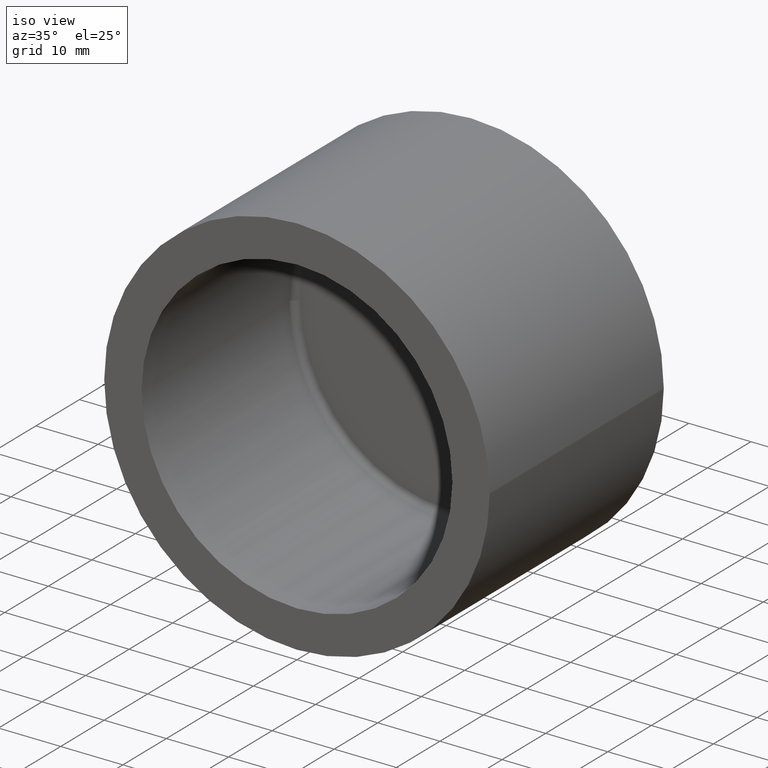
[diagram: clean part render]
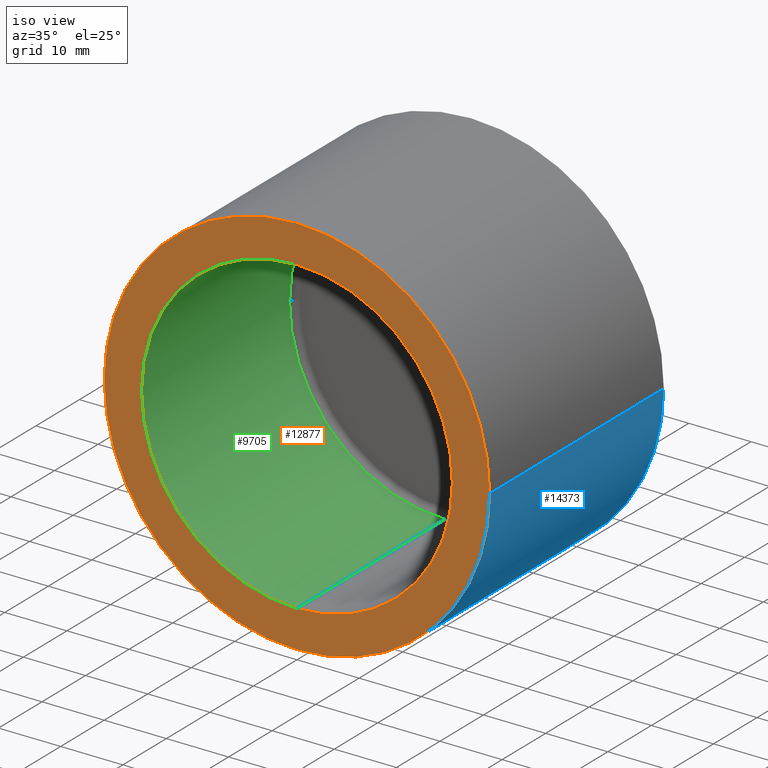
[diagram: same view with three faces highlighted in distinct colors, each labeled with its STEP entity id]
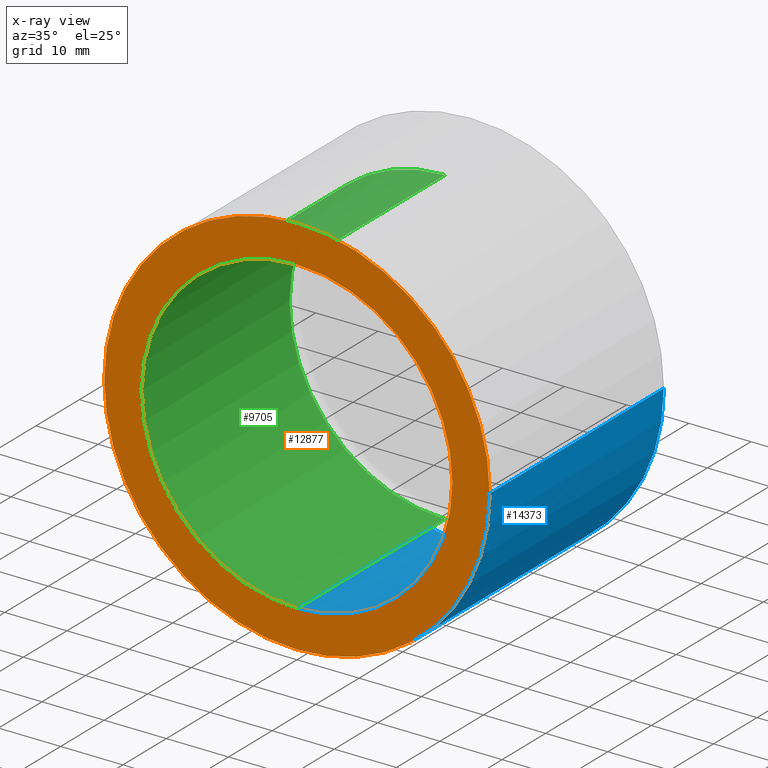
[diagram: x-ray of the same camera — body ghosted, the three highlighted faces saturated]
A machine part, iso view with three faces highlighted in distinct colors.
The next image is the same camera in x-ray (body ghosted, the three faces saturated) — at least one of them is partly hidden behind the body in this view.
Their STEP definitions:

[orange] entity #12877 — the highlighted planar face has unit normal (0, -1, 0).
#858 = VERTEX_POINT ( 'NONE', #4689 ) ;
#1329 = CARTESIAN_POINT ( 'NONE',  ( 0.000000000000000000, 0.000000000000000000, 0.000000000000000000 ) ) ;
#1640 = VERTEX_POINT ( 'NONE', #8630 ) ;
#1644 = CIRCLE ( 'NONE', #11172, 25.00000000000000000 ) ;
#1875 = DIRECTION ( 'NONE',  ( 1.000000000000000000, 8.673617379884035472E-17, 0.000000000000000000 ) ) ;
#1929 = DIRECTION ( 'NONE',  ( 8.673617379884035472E-17, -1.000000000000000000, 0.000000000000000000 ) ) ;
#2068 = VERTEX_POINT ( 'NONE', #6268 ) ;
#2712 = CIRCLE ( 'NONE', #9668, 31.00000000000000000 ) ;
#3038 = CIRCLE ( 'NONE', #14211, 25.00000000000000000 ) ;
#3312 = DIRECTION ( 'NONE',  ( -8.673617379884035472E-17, 1.000000000000000000, -0.000000000000000000 ) ) ;
#3354 = ORIENTED_EDGE ( 'NONE', *, *, #5034, .F. ) ;
#3358 = DIRECTION ( 'NONE',  ( -1.000000000000000000, -8.673617379884035472E-17, 0.000000000000000000 ) ) ;
#3397 = DIRECTION ( 'NONE',  ( 0.000000000000000000, -1.000000000000000000, 0.000000000000000000 ) ) ;
#3596 = ORIENTED_EDGE ( 'NONE', *, *, #5928, .F. ) ;
#3664 = CARTESIAN_POINT ( 'NONE',  ( 0.000000000000000000, 0.000000000000000000, 0.000000000000000000 ) ) ;
#4215 = CARTESIAN_POINT ( 'NONE',  ( -8.499999999999998224, -9.054108630585023749E-16, 0.000000000000000000 ) ) ;
#4689 = CARTESIAN_POINT ( 'NONE',  ( 31.00000000000000000, 2.688821387764050602E-15, 3.796405077356795904E-15 ) ) ;
#4889 = DIRECTION ( 'NONE',  ( -8.673617379884035472E-17, 1.000000000000000000, -0.000000000000000000 ) ) ;
#5014 = EDGE_CURVE ( 'NONE', #858, #1640, #2712, .T. ) ;
#5034 = EDGE_CURVE ( 'NONE', #2068, #13819, #1644, .T. ) ;
#5566 = EDGE_LOOP ( 'NONE', ( #3354, #3596 ) ) ;
#5928 = EDGE_CURVE ( 'NONE', #13819, #2068, #3038, .T. ) ;
#6268 = CARTESIAN_POINT ( 'NONE',  ( 0.000000000000000000, 0.000000000000000000, -25.00000000000000000 ) ) ;
#6385 = EDGE_CURVE ( 'NONE', #1640, #858, #11998, .T. ) ;
#7041 = CARTESIAN_POINT ( 'NONE',  ( 0.000000000000000000, 0.000000000000000000, 0.000000000000000000 ) ) ;
#8630 = CARTESIAN_POINT ( 'NONE',  ( -31.00000000000000000, -2.688821387764050996E-15, 0.000000000000000000 ) ) ;
#8908 = CARTESIAN_POINT ( 'NONE',  ( 0.000000000000000000, 0.000000000000000000, 0.000000000000000000 ) ) ;
#9239 = AXIS2_PLACEMENT_3D ( 'NONE', #4215, #1929, #1875 ) ;
#9415 = DIRECTION ( 'NONE',  ( -1.000000000000000000, -8.673617379884035472E-17, 0.000000000000000000 ) ) ;
#9668 = AXIS2_PLACEMENT_3D ( 'NONE', #7041, #4889, #9415 ) ;
#10487 = DIRECTION ( 'NONE',  ( 0.000000000000000000, 0.000000000000000000, -1.000000000000000000 ) ) ;
#10833 = CARTESIAN_POINT ( 'NONE',  ( 3.061616997868382254E-15, 0.000000000000000000, 25.00000000000000000 ) ) ;
#11172 = AXIS2_PLACEMENT_3D ( 'NONE', #3664, #11521, #10487 ) ;
#11254 = DIRECTION ( 'NONE',  ( 0.000000000000000000, 0.000000000000000000, -1.000000000000000000 ) ) ;
#11521 = DIRECTION ( 'NONE',  ( 0.000000000000000000, -1.000000000000000000, 0.000000000000000000 ) ) ;
#11562 = AXIS2_PLACEMENT_3D ( 'NONE', #1329, #3312, #3358 ) ;
#11564 = ORIENTED_EDGE ( 'NONE', *, *, #6385, .F. ) ;
#11998 = CIRCLE ( 'NONE', #11562, 31.00000000000000000 ) ;
#12877 = ADVANCED_FACE ( 'NONE', ( #14382, #13841 ), #14331, .T. ) ;
#13769 = EDGE_LOOP ( 'NONE', ( #11564, #14476 ) ) ;
#13819 = VERTEX_POINT ( 'NONE', #10833 ) ;
#13841 = FACE_OUTER_BOUND ( 'NONE', #13769, .T. ) ;
#14211 = AXIS2_PLACEMENT_3D ( 'NONE', #8908, #3397, #11254 ) ;
#14331 = PLANE ( 'NONE',  #9239 ) ;
#14382 = FACE_BOUND ( 'NONE', #5566, .T. ) ;
#14476 = ORIENTED_EDGE ( 'NONE', *, *, #5014, .F. ) ;

[blue] entity #14373 — the highlighted cylindrical surface (partial cylindrical patch) has radius 31 mm, axis along (-0, 1, -0).
#858 = VERTEX_POINT ( 'NONE', #4689 ) ;
#1186 = CARTESIAN_POINT ( 'NONE',  ( 31.00000000000000355, 40.00000000000000000, 3.796405077356795904E-15 ) ) ;
#1486 = CARTESIAN_POINT ( 'NONE',  ( -31.00000000000001066, 40.00000000000000000, 0.000000000000000000 ) ) ;
#1569 = ORIENTED_EDGE ( 'NONE', *, *, #8047, .F. ) ;
#1640 = VERTEX_POINT ( 'NONE', #8630 ) ;
#2040 = CARTESIAN_POINT ( 'NONE',  ( -3.469446951953614189E-15, 40.00000000000000000, 0.000000000000000000 ) ) ;
#2191 = ORIENTED_EDGE ( 'NONE', *, *, #5014, .T. ) ;
#2712 = CIRCLE ( 'NONE', #9668, 31.00000000000000000 ) ;
#3106 = DIRECTION ( 'NONE',  ( -8.673617379884035472E-17, 1.000000000000000000, -0.000000000000000000 ) ) ;
#3422 = VERTEX_POINT ( 'NONE', #5171 ) ;
#3456 = DIRECTION ( 'NONE',  ( -8.673617379884035472E-17, 1.000000000000000000, -0.000000000000000000 ) ) ;
#4066 = CIRCLE ( 'NONE', #10809, 31.00000000000001066 ) ;
#4146 = DIRECTION ( 'NONE',  ( -8.673617379884035472E-17, 1.000000000000000000, -0.000000000000000000 ) ) ;
#4483 = CYLINDRICAL_SURFACE ( 'NONE', #9047, 31.00000000000000711 ) ;
#4689 = CARTESIAN_POINT ( 'NONE',  ( 31.00000000000000000, 2.688821387764050602E-15, 3.796405077356795904E-15 ) ) ;
#4889 = DIRECTION ( 'NONE',  ( -8.673617379884035472E-17, 1.000000000000000000, -0.000000000000000000 ) ) ;
#5014 = EDGE_CURVE ( 'NONE', #858, #1640, #2712, .T. ) ;
#5171 = CARTESIAN_POINT ( 'NONE',  ( 31.00000000000000711, 40.00000000000000000, 3.796405077356795904E-15 ) ) ;
#5621 = VECTOR ( 'NONE', #9362, 1000.000000000000000 ) ;
#5830 = VERTEX_POINT ( 'NONE', #8815 ) ;
#7041 = CARTESIAN_POINT ( 'NONE',  ( 0.000000000000000000, 0.000000000000000000, 0.000000000000000000 ) ) ;
#7056 = EDGE_CURVE ( 'NONE', #3422, #5830, #4066, .T. ) ;
#7456 = FACE_OUTER_BOUND ( 'NONE', #8766, .T. ) ;
#7466 = CARTESIAN_POINT ( 'NONE',  ( -3.469446951953614189E-15, 40.00000000000000000, 0.000000000000000000 ) ) ;
#8047 = EDGE_CURVE ( 'NONE', #858, #3422, #12145, .T. ) ;
#8087 = LINE ( 'NONE', #1486, #5621 ) ;
#8630 = CARTESIAN_POINT ( 'NONE',  ( -31.00000000000000000, -2.688821387764050996E-15, 0.000000000000000000 ) ) ;
#8634 = DIRECTION ( 'NONE',  ( -1.000000000000000000, 0.000000000000000000, 0.000000000000000000 ) ) ;
#8766 = EDGE_LOOP ( 'NONE', ( #1569, #2191, #12526, #8961 ) ) ;
#8812 = EDGE_CURVE ( 'NONE', #1640, #5830, #8087, .T. ) ;
#8815 = CARTESIAN_POINT ( 'NONE',  ( -31.00000000000001421, 40.00000000000000000, 0.000000000000000000 ) ) ;
#8961 = ORIENTED_EDGE ( 'NONE', *, *, #7056, .F. ) ;
#9047 = AXIS2_PLACEMENT_3D ( 'NONE', #7466, #3106, #8634 ) ;
#9362 = DIRECTION ( 'NONE',  ( -8.673617379884035472E-17, 1.000000000000000000, -0.000000000000000000 ) ) ;
#9415 = DIRECTION ( 'NONE',  ( -1.000000000000000000, -8.673617379884035472E-17, 0.000000000000000000 ) ) ;
#9668 = AXIS2_PLACEMENT_3D ( 'NONE', #7041, #4889, #9415 ) ;
#10809 = AXIS2_PLACEMENT_3D ( 'NONE', #2040, #4146, #14349 ) ;
#12145 = LINE ( 'NONE', #1186, #13929 ) ;
#12526 = ORIENTED_EDGE ( 'NONE', *, *, #8812, .T. ) ;
#13929 = VECTOR ( 'NONE', #3456, 1000.000000000000000 ) ;
#14349 = DIRECTION ( 'NONE',  ( -1.000000000000000000, 0.000000000000000000, 0.000000000000000000 ) ) ;
#14373 = ADVANCED_FACE ( 'NONE', ( #7456 ), #4483, .T. ) ;

[green] entity #9705 — the highlighted cylindrical surface (partial cylindrical patch) has radius 25 mm, axis along (-0, -1, -0).
#203 = ORIENTED_EDGE ( 'NONE', *, *, #3072, .T. ) ;
#609 = VECTOR ( 'NONE', #2312, 1000.000000000000000 ) ;
#836 = CARTESIAN_POINT ( 'NONE',  ( 0.000000000000000000, 34.00000000000000000, 0.000000000000000000 ) ) ;
#1638 = ORIENTED_EDGE ( 'NONE', *, *, #5928, .T. ) ;
#1704 = VERTEX_POINT ( 'NONE', #7317 ) ;
#1886 = ORIENTED_EDGE ( 'NONE', *, *, #14273, .T. ) ;
#1997 = DIRECTION ( 'NONE',  ( -0.000000000000000000, -1.000000000000000000, -0.000000000000000000 ) ) ;
#2052 = CARTESIAN_POINT ( 'NONE',  ( 3.061616997868382254E-15, 34.00000000000000000, 25.00000000000000000 ) ) ;
#2068 = VERTEX_POINT ( 'NONE', #6268 ) ;
#2216 = CARTESIAN_POINT ( 'NONE',  ( 3.061616997868382254E-15, 110.7106781186547835, 25.00000000000000000 ) ) ;
#2312 = DIRECTION ( 'NONE',  ( -0.000000000000000000, -1.000000000000000000, -0.000000000000000000 ) ) ;
#2389 = EDGE_CURVE ( 'NONE', #7144, #1704, #5368, .T. ) ;
#2906 = AXIS2_PLACEMENT_3D ( 'NONE', #13902, #10593, #12803 ) ;
#3038 = CIRCLE ( 'NONE', #14211, 25.00000000000000000 ) ;
#3066 = DIRECTION ( 'NONE',  ( -1.000000000000000000, 0.000000000000000000, 0.000000000000000000 ) ) ;
#3072 = EDGE_CURVE ( 'NONE', #1704, #6798, #8367, .T. ) ;
#3397 = DIRECTION ( 'NONE',  ( 0.000000000000000000, -1.000000000000000000, 0.000000000000000000 ) ) ;
#4956 = AXIS2_PLACEMENT_3D ( 'NONE', #836, #8729, #8582 ) ;
#5368 = CIRCLE ( 'NONE', #4956, 25.00000000000000000 ) ;
#5928 = EDGE_CURVE ( 'NONE', #13819, #2068, #3038, .T. ) ;
#6268 = CARTESIAN_POINT ( 'NONE',  ( 0.000000000000000000, 0.000000000000000000, -25.00000000000000000 ) ) ;
#6306 = DIRECTION ( 'NONE',  ( -8.673617379884035472E-17, 1.000000000000000000, -0.000000000000000000 ) ) ;
#6379 = ORIENTED_EDGE ( 'NONE', *, *, #11111, .F. ) ;
#6445 = ORIENTED_EDGE ( 'NONE', *, *, #2389, .T. ) ;
#6798 = VERTEX_POINT ( 'NONE', #2052 ) ;
#7144 = VERTEX_POINT ( 'NONE', #11600 ) ;
#7317 = CARTESIAN_POINT ( 'NONE',  ( -25.00000000000000000, 34.00000000000000000, 0.000000000000000000 ) ) ;
#7848 = EDGE_LOOP ( 'NONE', ( #6445, #203, #1886, #1638, #6379 ) ) ;
#7882 = CYLINDRICAL_SURFACE ( 'NONE', #2906, 25.00000000000000000 ) ;
#8367 = CIRCLE ( 'NONE', #13052, 25.00000000000000000 ) ;
#8582 = DIRECTION ( 'NONE',  ( -1.000000000000000000, 0.000000000000000000, 0.000000000000000000 ) ) ;
#8597 = CARTESIAN_POINT ( 'NONE',  ( 0.000000000000000000, 34.00000000000000000, 0.000000000000000000 ) ) ;
#8729 = DIRECTION ( 'NONE',  ( -8.673617379884035472E-17, 1.000000000000000000, -0.000000000000000000 ) ) ;
#8908 = CARTESIAN_POINT ( 'NONE',  ( 0.000000000000000000, 0.000000000000000000, 0.000000000000000000 ) ) ;
#9705 = ADVANCED_FACE ( 'NONE', ( #9835 ), #7882, .F. ) ;
#9835 = FACE_OUTER_BOUND ( 'NONE', #7848, .T. ) ;
#10593 = DIRECTION ( 'NONE',  ( -0.000000000000000000, -1.000000000000000000, -0.000000000000000000 ) ) ;
#10833 = CARTESIAN_POINT ( 'NONE',  ( 3.061616997868382254E-15, 0.000000000000000000, 25.00000000000000000 ) ) ;
#11111 = EDGE_CURVE ( 'NONE', #7144, #2068, #12726, .T. ) ;
#11169 = LINE ( 'NONE', #2216, #609 ) ;
#11254 = DIRECTION ( 'NONE',  ( 0.000000000000000000, 0.000000000000000000, -1.000000000000000000 ) ) ;
#11600 = CARTESIAN_POINT ( 'NONE',  ( 0.000000000000000000, 34.00000000000000000, -25.00000000000000000 ) ) ;
#12726 = LINE ( 'NONE', #13250, #13423 ) ;
#12803 = DIRECTION ( 'NONE',  ( 0.000000000000000000, 0.000000000000000000, -1.000000000000000000 ) ) ;
#13052 = AXIS2_PLACEMENT_3D ( 'NONE', #8597, #6306, #3066 ) ;
#13250 = CARTESIAN_POINT ( 'NONE',  ( 0.000000000000000000, 110.7106781186547835, -25.00000000000000000 ) ) ;
#13423 = VECTOR ( 'NONE', #1997, 1000.000000000000000 ) ;
#13819 = VERTEX_POINT ( 'NONE', #10833 ) ;
#13902 = CARTESIAN_POINT ( 'NONE',  ( 0.000000000000000000, 110.7106781186547835, 0.000000000000000000 ) ) ;
#14211 = AXIS2_PLACEMENT_3D ( 'NONE', #8908, #3397, #11254 ) ;
#14273 = EDGE_CURVE ( 'NONE', #6798, #13819, #11169, .T. ) ;